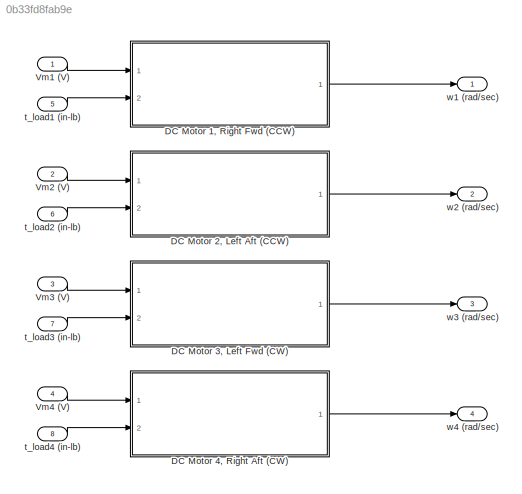
MODEL slx_0b33fd8fab9e
KIND model
CONFIG AbsTol = auto
CONFIG FixedStep = auto
CONFIG MaxStep = auto
CONFIG MinStep = auto
CONFIG RelTol = 1e-3
CONFIG SampleTimeConstraint = Unconstrained
CONFIG Solver = ode45
CONFIG SolverMode = SingleTasking
CONFIG SolverName = ode45
CONFIG StartTime = 0.0
CONFIG StopTime = 10.0
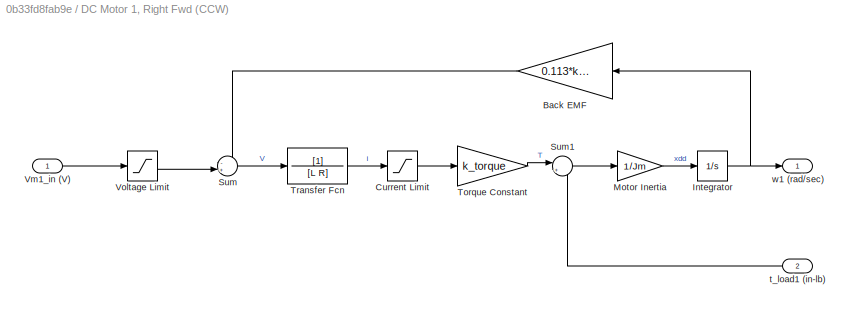
BLOCK [SubSystem] DC Motor 1, Right Fwd (CCW)
  Ports = [2, 1]
  RequestExecContextInheritance = off
  Variant = off
BLOCK [Gain] DC Motor 1, Right Fwd (CCW)/Back EMF
  Gain = 0.113*k_torque
  OutDataTypeStr = Inherit: Inherit via internal rule
  ParamDataTypeStr = Inherit: Inherit via internal rule
  SaturateOnIntegerOverflow = off
BLOCK [Saturate] DC Motor 1, Right Fwd (CCW)/Current Limit
  InputPortMap = u0
  LowerLimit = i_min
  Ports = [1, 1]
  UpperLimit = i_max
BLOCK [Integrator] DC Motor 1, Right Fwd (CCW)/Integrator
  Ports = [1, 1]
BLOCK [Gain] DC Motor 1, Right Fwd (CCW)/Motor Inertia
  Gain = 1/Jm
  OutDataTypeStr = Inherit: Inherit via internal rule
  ParamDataTypeStr = Inherit: Inherit via internal rule
  SaturateOnIntegerOverflow = off
BLOCK [Sum] DC Motor 1, Right Fwd (CCW)/Sum
  IconShape = round
  InputSameDT = off
  Inputs = -+|
  OutDataTypeStr = Inherit: Inherit via internal rule
  Ports = [2, 1]
  SaturateOnIntegerOverflow = off
BLOCK [Sum] DC Motor 1, Right Fwd (CCW)/Sum1
  IconShape = round
  InputSameDT = off
  Inputs = |+-
  OutDataTypeStr = Inherit: Inherit via internal rule
  Ports = [2, 1]
  SaturateOnIntegerOverflow = off
BLOCK [Gain] DC Motor 1, Right Fwd (CCW)/Torque Constant
  Gain = k_torque
  OutDataTypeStr = Inherit: Inherit via internal rule
  ParamDataTypeStr = Inherit: Inherit via internal rule
  SaturateOnIntegerOverflow = off
BLOCK [TransferFcn] DC Motor 1, Right Fwd (CCW)/Transfer Fcn
  Denominator = [L R]
BLOCK [Inport] DC Motor 1, Right Fwd (CCW)/Vm1_in (V)
  IconDisplay = Port number
BLOCK [Saturate] DC Motor 1, Right Fwd (CCW)/Voltage Limit
  InputPortMap = u0
  LowerLimit = v_min
  Ports = [1, 1]
  UpperLimit = v_max
BLOCK [Inport] DC Motor 1, Right Fwd (CCW)/t_load1 (in-lb)
  IconDisplay = Port number
  Port = 2
BLOCK [Outport] DC Motor 1, Right Fwd (CCW)/w1 (rad//sec)
  IconDisplay = Port number
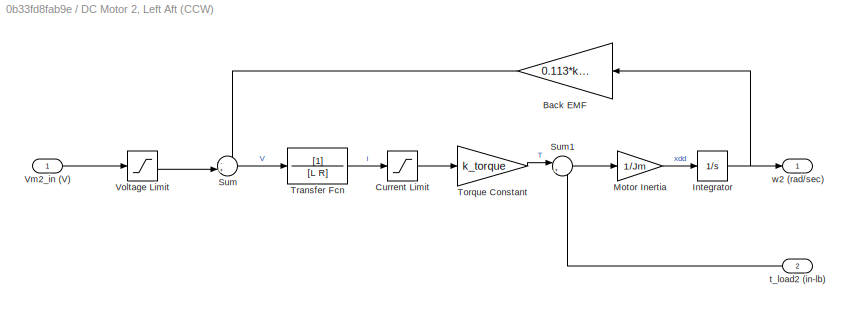
BLOCK [SubSystem] DC Motor 2, Left Aft (CCW)
  Ports = [2, 1]
  RequestExecContextInheritance = off
  Variant = off
BLOCK [Gain] DC Motor 2, Left Aft (CCW)/Back EMF
  Gain = 0.113*k_torque
  OutDataTypeStr = Inherit: Inherit via internal rule
  ParamDataTypeStr = Inherit: Inherit via internal rule
  SaturateOnIntegerOverflow = off
BLOCK [Saturate] DC Motor 2, Left Aft (CCW)/Current Limit
  InputPortMap = u0
  LowerLimit = i_min
  Ports = [1, 1]
  UpperLimit = i_max
BLOCK [Integrator] DC Motor 2, Left Aft (CCW)/Integrator
  Ports = [1, 1]
BLOCK [Gain] DC Motor 2, Left Aft (CCW)/Motor Inertia
  Gain = 1/Jm
  OutDataTypeStr = Inherit: Inherit via internal rule
  ParamDataTypeStr = Inherit: Inherit via internal rule
  SaturateOnIntegerOverflow = off
BLOCK [Sum] DC Motor 2, Left Aft (CCW)/Sum
  IconShape = round
  InputSameDT = off
  Inputs = -+|
  OutDataTypeStr = Inherit: Inherit via internal rule
  Ports = [2, 1]
  SaturateOnIntegerOverflow = off
BLOCK [Sum] DC Motor 2, Left Aft (CCW)/Sum1
  IconShape = round
  InputSameDT = off
  Inputs = |+-
  OutDataTypeStr = Inherit: Inherit via internal rule
  Ports = [2, 1]
  SaturateOnIntegerOverflow = off
BLOCK [Gain] DC Motor 2, Left Aft (CCW)/Torque Constant
  Gain = k_torque
  OutDataTypeStr = Inherit: Inherit via internal rule
  ParamDataTypeStr = Inherit: Inherit via internal rule
  SaturateOnIntegerOverflow = off
BLOCK [TransferFcn] DC Motor 2, Left Aft (CCW)/Transfer Fcn
  Denominator = [L R]
BLOCK [Inport] DC Motor 2, Left Aft (CCW)/Vm2_in (V)
  IconDisplay = Port number
BLOCK [Saturate] DC Motor 2, Left Aft (CCW)/Voltage Limit
  InputPortMap = u0
  LowerLimit = v_min
  Ports = [1, 1]
  UpperLimit = v_max
BLOCK [Inport] DC Motor 2, Left Aft (CCW)/t_load2 (in-lb)
  IconDisplay = Port number
  Port = 2
BLOCK [Outport] DC Motor 2, Left Aft (CCW)/w2 (rad//sec)
  IconDisplay = Port number
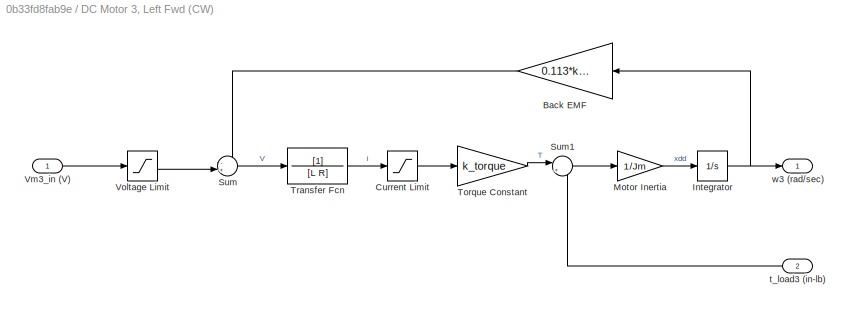
BLOCK [SubSystem] DC Motor 3, Left Fwd (CW)
  Ports = [2, 1]
  RequestExecContextInheritance = off
  Variant = off
BLOCK [Gain] DC Motor 3, Left Fwd (CW)/Back EMF
  Gain = 0.113*k_torque
  OutDataTypeStr = Inherit: Inherit via internal rule
  ParamDataTypeStr = Inherit: Inherit via internal rule
  SaturateOnIntegerOverflow = off
BLOCK [Saturate] DC Motor 3, Left Fwd (CW)/Current Limit
  InputPortMap = u0
  LowerLimit = i_min
  Ports = [1, 1]
  UpperLimit = i_max
BLOCK [Integrator] DC Motor 3, Left Fwd (CW)/Integrator
  Ports = [1, 1]
BLOCK [Gain] DC Motor 3, Left Fwd (CW)/Motor Inertia
  Gain = 1/Jm
  OutDataTypeStr = Inherit: Inherit via internal rule
  ParamDataTypeStr = Inherit: Inherit via internal rule
  SaturateOnIntegerOverflow = off
BLOCK [Sum] DC Motor 3, Left Fwd (CW)/Sum
  IconShape = round
  InputSameDT = off
  Inputs = -+|
  OutDataTypeStr = Inherit: Inherit via internal rule
  Ports = [2, 1]
  SaturateOnIntegerOverflow = off
BLOCK [Sum] DC Motor 3, Left Fwd (CW)/Sum1
  IconShape = round
  InputSameDT = off
  Inputs = |+-
  OutDataTypeStr = Inherit: Inherit via internal rule
  Ports = [2, 1]
  SaturateOnIntegerOverflow = off
BLOCK [Gain] DC Motor 3, Left Fwd (CW)/Torque Constant
  Gain = k_torque
  OutDataTypeStr = Inherit: Inherit via internal rule
  ParamDataTypeStr = Inherit: Inherit via internal rule
  SaturateOnIntegerOverflow = off
BLOCK [TransferFcn] DC Motor 3, Left Fwd (CW)/Transfer Fcn
  Denominator = [L R]
BLOCK [Inport] DC Motor 3, Left Fwd (CW)/Vm3_in (V)
  IconDisplay = Port number
BLOCK [Saturate] DC Motor 3, Left Fwd (CW)/Voltage Limit
  InputPortMap = u0
  LowerLimit = v_min
  Ports = [1, 1]
  UpperLimit = v_max
BLOCK [Inport] DC Motor 3, Left Fwd (CW)/t_load3 (in-lb)
  IconDisplay = Port number
  Port = 2
BLOCK [Outport] DC Motor 3, Left Fwd (CW)/w3 (rad//sec)
  IconDisplay = Port number
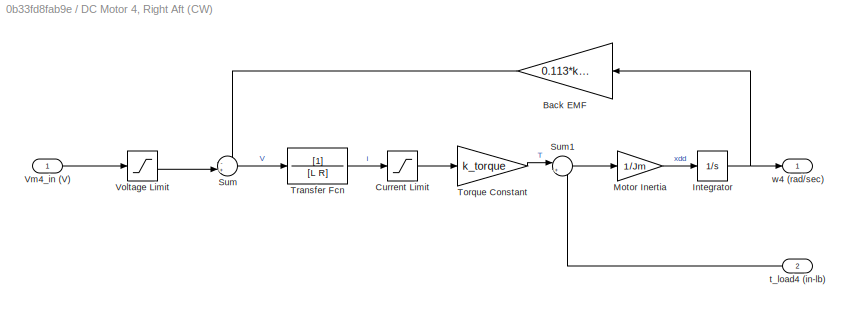
BLOCK [SubSystem] DC Motor 4, Right Aft (CW)
  Ports = [2, 1]
  RequestExecContextInheritance = off
  Variant = off
BLOCK [Gain] DC Motor 4, Right Aft (CW)/Back EMF
  Gain = 0.113*k_torque
  OutDataTypeStr = Inherit: Inherit via internal rule
  ParamDataTypeStr = Inherit: Inherit via internal rule
  SaturateOnIntegerOverflow = off
BLOCK [Saturate] DC Motor 4, Right Aft (CW)/Current Limit
  InputPortMap = u0
  LowerLimit = i_min
  Ports = [1, 1]
  UpperLimit = i_max
BLOCK [Integrator] DC Motor 4, Right Aft (CW)/Integrator
  Ports = [1, 1]
BLOCK [Gain] DC Motor 4, Right Aft (CW)/Motor Inertia
  Gain = 1/Jm
  OutDataTypeStr = Inherit: Inherit via internal rule
  ParamDataTypeStr = Inherit: Inherit via internal rule
  SaturateOnIntegerOverflow = off
BLOCK [Sum] DC Motor 4, Right Aft (CW)/Sum
  IconShape = round
  InputSameDT = off
  Inputs = -+|
  OutDataTypeStr = Inherit: Inherit via internal rule
  Ports = [2, 1]
  SaturateOnIntegerOverflow = off
BLOCK [Sum] DC Motor 4, Right Aft (CW)/Sum1
  IconShape = round
  InputSameDT = off
  Inputs = |+-
  OutDataTypeStr = Inherit: Inherit via internal rule
  Ports = [2, 1]
  SaturateOnIntegerOverflow = off
BLOCK [Gain] DC Motor 4, Right Aft (CW)/Torque Constant
  Gain = k_torque
  OutDataTypeStr = Inherit: Inherit via internal rule
  ParamDataTypeStr = Inherit: Inherit via internal rule
  SaturateOnIntegerOverflow = off
BLOCK [TransferFcn] DC Motor 4, Right Aft (CW)/Transfer Fcn
  Denominator = [L R]
BLOCK [Inport] DC Motor 4, Right Aft (CW)/Vm4_in (V)
  IconDisplay = Port number
BLOCK [Saturate] DC Motor 4, Right Aft (CW)/Voltage Limit
  InputPortMap = u0
  LowerLimit = v_min
  Ports = [1, 1]
  UpperLimit = v_max
BLOCK [Inport] DC Motor 4, Right Aft (CW)/t_load4 (in-lb)
  IconDisplay = Port number
  Port = 2
BLOCK [Outport] DC Motor 4, Right Aft (CW)/w4 (rad//sec)
  IconDisplay = Port number
BLOCK [Inport] Vm1 (V)
  IconDisplay = Port number
BLOCK [Inport] Vm2 (V)
  IconDisplay = Port number
  Port = 2
BLOCK [Inport] Vm3 (V)
  IconDisplay = Port number
  Port = 3
BLOCK [Inport] Vm4 (V)
  IconDisplay = Port number
  Port = 4
BLOCK [Inport] t_load1 (in-lb)
  IconDisplay = Port number
  Port = 5
BLOCK [Inport] t_load2 (in-lb)
  IconDisplay = Port number
  Port = 6
BLOCK [Inport] t_load3 (in-lb)
  IconDisplay = Port number
  Port = 7
BLOCK [Inport] t_load4 (in-lb)
  IconDisplay = Port number
  Port = 8
BLOCK [Outport] w1 (rad//sec)
  IconDisplay = Port number
BLOCK [Outport] w2 (rad//sec)
  IconDisplay = Port number
  Port = 2
BLOCK [Outport] w3 (rad//sec)
  IconDisplay = Port number
  Port = 3
BLOCK [Outport] w4 (rad//sec)
  IconDisplay = Port number
  Port = 4
LINE DC Motor 1, Right Fwd (CCW)/Back EMF:1 -> DC Motor 1, Right Fwd (CCW)/Sum:1
LINE DC Motor 1, Right Fwd (CCW)/Current Limit:1 -> DC Motor 1, Right Fwd (CCW)/Torque Constant:1
NET DC Motor 1, Right Fwd (CCW)/Integrator:1 -> DC Motor 1, Right Fwd (CCW)/Back EMF:1, DC Motor 1, Right Fwd (CCW)/w1 (rad//sec):1
LINE DC Motor 1, Right Fwd (CCW)/Motor Inertia:1 -> DC Motor 1, Right Fwd (CCW)/Integrator:1
LINE DC Motor 1, Right Fwd (CCW)/Sum1:1 -> DC Motor 1, Right Fwd (CCW)/Motor Inertia:1
LINE DC Motor 1, Right Fwd (CCW)/Sum:1 -> DC Motor 1, Right Fwd (CCW)/Transfer Fcn:1
LINE DC Motor 1, Right Fwd (CCW)/Torque Constant:1 -> DC Motor 1, Right Fwd (CCW)/Sum1:1
LINE DC Motor 1, Right Fwd (CCW)/Transfer Fcn:1 -> DC Motor 1, Right Fwd (CCW)/Current Limit:1
LINE DC Motor 1, Right Fwd (CCW)/Vm1_in (V):1 -> DC Motor 1, Right Fwd (CCW)/Voltage Limit:1
LINE DC Motor 1, Right Fwd (CCW)/Voltage Limit:1 -> DC Motor 1, Right Fwd (CCW)/Sum:2
LINE DC Motor 1, Right Fwd (CCW)/t_load1 (in-lb):1 -> DC Motor 1, Right Fwd (CCW)/Sum1:2
LINE DC Motor 1, Right Fwd (CCW):1 -> w1 (rad//sec):1
LINE DC Motor 2, Left Aft (CCW)/Back EMF:1 -> DC Motor 2, Left Aft (CCW)/Sum:1
LINE DC Motor 2, Left Aft (CCW)/Current Limit:1 -> DC Motor 2, Left Aft (CCW)/Torque Constant:1
NET DC Motor 2, Left Aft (CCW)/Integrator:1 -> DC Motor 2, Left Aft (CCW)/Back EMF:1, DC Motor 2, Left Aft (CCW)/w2 (rad//sec):1
LINE DC Motor 2, Left Aft (CCW)/Motor Inertia:1 -> DC Motor 2, Left Aft (CCW)/Integrator:1
LINE DC Motor 2, Left Aft (CCW)/Sum1:1 -> DC Motor 2, Left Aft (CCW)/Motor Inertia:1
LINE DC Motor 2, Left Aft (CCW)/Sum:1 -> DC Motor 2, Left Aft (CCW)/Transfer Fcn:1
LINE DC Motor 2, Left Aft (CCW)/Torque Constant:1 -> DC Motor 2, Left Aft (CCW)/Sum1:1
LINE DC Motor 2, Left Aft (CCW)/Transfer Fcn:1 -> DC Motor 2, Left Aft (CCW)/Current Limit:1
LINE DC Motor 2, Left Aft (CCW)/Vm2_in (V):1 -> DC Motor 2, Left Aft (CCW)/Voltage Limit:1
LINE DC Motor 2, Left Aft (CCW)/Voltage Limit:1 -> DC Motor 2, Left Aft (CCW)/Sum:2
LINE DC Motor 2, Left Aft (CCW)/t_load2 (in-lb):1 -> DC Motor 2, Left Aft (CCW)/Sum1:2
LINE DC Motor 2, Left Aft (CCW):1 -> w2 (rad//sec):1
LINE DC Motor 3, Left Fwd (CW)/Back EMF:1 -> DC Motor 3, Left Fwd (CW)/Sum:1
LINE DC Motor 3, Left Fwd (CW)/Current Limit:1 -> DC Motor 3, Left Fwd (CW)/Torque Constant:1
NET DC Motor 3, Left Fwd (CW)/Integrator:1 -> DC Motor 3, Left Fwd (CW)/Back EMF:1, DC Motor 3, Left Fwd (CW)/w3 (rad//sec):1
LINE DC Motor 3, Left Fwd (CW)/Motor Inertia:1 -> DC Motor 3, Left Fwd (CW)/Integrator:1
LINE DC Motor 3, Left Fwd (CW)/Sum1:1 -> DC Motor 3, Left Fwd (CW)/Motor Inertia:1
LINE DC Motor 3, Left Fwd (CW)/Sum:1 -> DC Motor 3, Left Fwd (CW)/Transfer Fcn:1
LINE DC Motor 3, Left Fwd (CW)/Torque Constant:1 -> DC Motor 3, Left Fwd (CW)/Sum1:1
LINE DC Motor 3, Left Fwd (CW)/Transfer Fcn:1 -> DC Motor 3, Left Fwd (CW)/Current Limit:1
LINE DC Motor 3, Left Fwd (CW)/Vm3_in (V):1 -> DC Motor 3, Left Fwd (CW)/Voltage Limit:1
LINE DC Motor 3, Left Fwd (CW)/Voltage Limit:1 -> DC Motor 3, Left Fwd (CW)/Sum:2
LINE DC Motor 3, Left Fwd (CW)/t_load3 (in-lb):1 -> DC Motor 3, Left Fwd (CW)/Sum1:2
LINE DC Motor 3, Left Fwd (CW):1 -> w3 (rad//sec):1
LINE DC Motor 4, Right Aft (CW)/Back EMF:1 -> DC Motor 4, Right Aft (CW)/Sum:1
LINE DC Motor 4, Right Aft (CW)/Current Limit:1 -> DC Motor 4, Right Aft (CW)/Torque Constant:1
NET DC Motor 4, Right Aft (CW)/Integrator:1 -> DC Motor 4, Right Aft (CW)/Back EMF:1, DC Motor 4, Right Aft (CW)/w4 (rad//sec):1
LINE DC Motor 4, Right Aft (CW)/Motor Inertia:1 -> DC Motor 4, Right Aft (CW)/Integrator:1
LINE DC Motor 4, Right Aft (CW)/Sum1:1 -> DC Motor 4, Right Aft (CW)/Motor Inertia:1
LINE DC Motor 4, Right Aft (CW)/Sum:1 -> DC Motor 4, Right Aft (CW)/Transfer Fcn:1
LINE DC Motor 4, Right Aft (CW)/Torque Constant:1 -> DC Motor 4, Right Aft (CW)/Sum1:1
LINE DC Motor 4, Right Aft (CW)/Transfer Fcn:1 -> DC Motor 4, Right Aft (CW)/Current Limit:1
LINE DC Motor 4, Right Aft (CW)/Vm4_in (V):1 -> DC Motor 4, Right Aft (CW)/Voltage Limit:1
LINE DC Motor 4, Right Aft (CW)/Voltage Limit:1 -> DC Motor 4, Right Aft (CW)/Sum:2
LINE DC Motor 4, Right Aft (CW)/t_load4 (in-lb):1 -> DC Motor 4, Right Aft (CW)/Sum1:2
LINE DC Motor 4, Right Aft (CW):1 -> w4 (rad//sec):1
LINE Vm1 (V):1 -> DC Motor 1, Right Fwd (CCW):1
LINE Vm2 (V):1 -> DC Motor 2, Left Aft (CCW):1
LINE Vm3 (V):1 -> DC Motor 3, Left Fwd (CW):1
LINE Vm4 (V):1 -> DC Motor 4, Right Aft (CW):1
LINE t_load1 (in-lb):1 -> DC Motor 1, Right Fwd (CCW):2
LINE t_load2 (in-lb):1 -> DC Motor 2, Left Aft (CCW):2
LINE t_load3 (in-lb):1 -> DC Motor 3, Left Fwd (CW):2
LINE t_load4 (in-lb):1 -> DC Motor 4, Right Aft (CW):2
note: NET lines group one-source signal fan-out (src -> all destinations, sorted); 1:1 wires keep LINE
